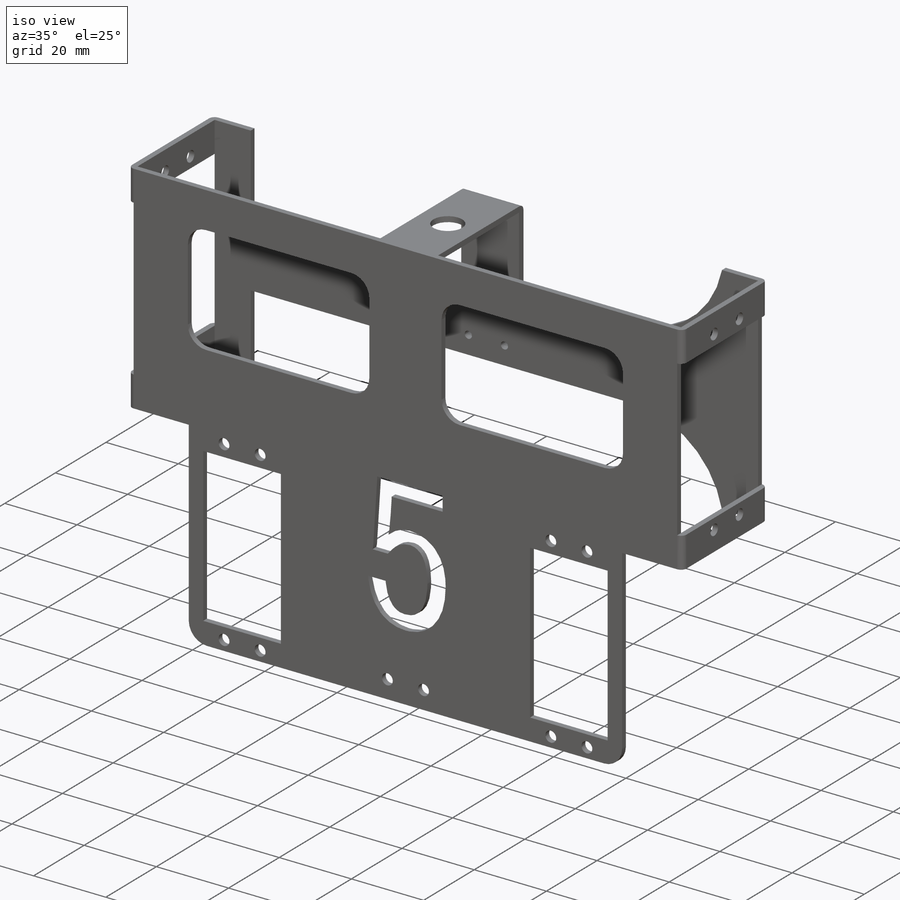
[diagram: iso view]
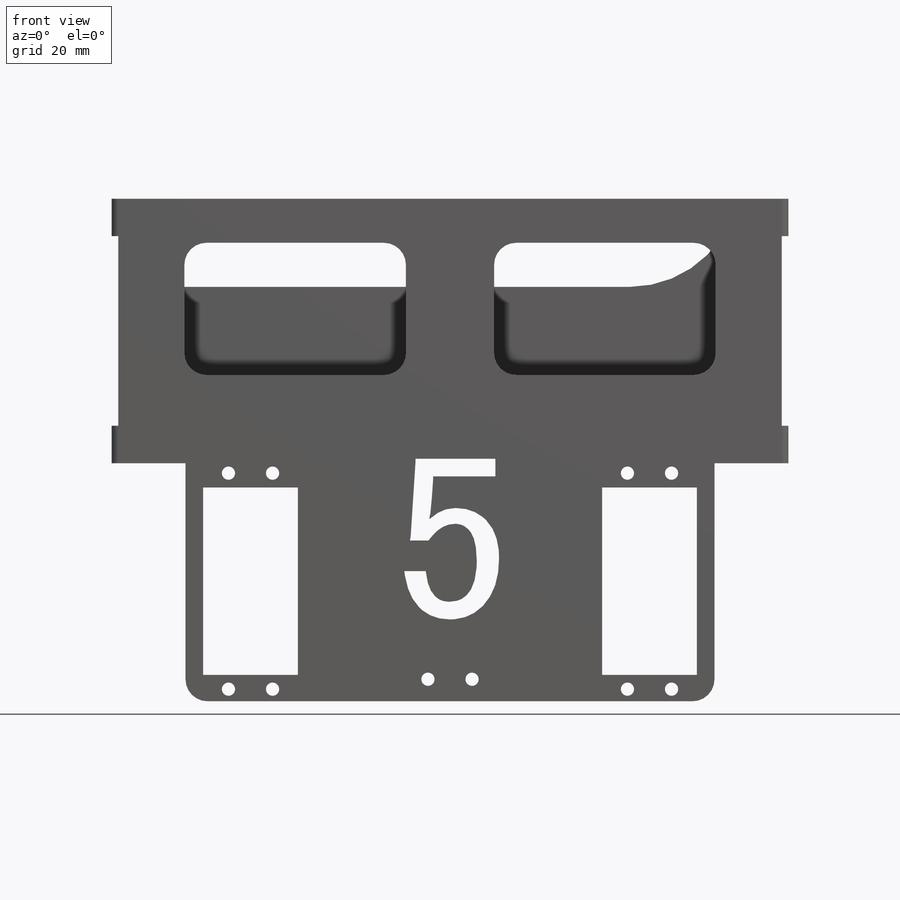
[diagram: front view]
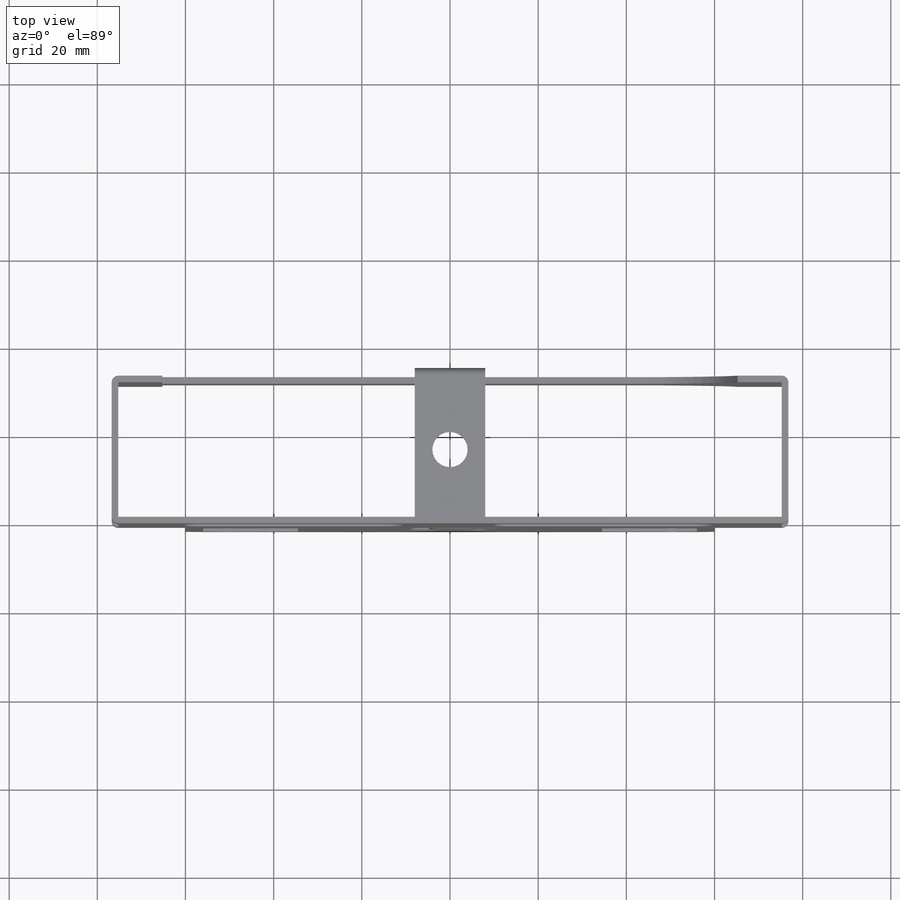
[diagram: top view]
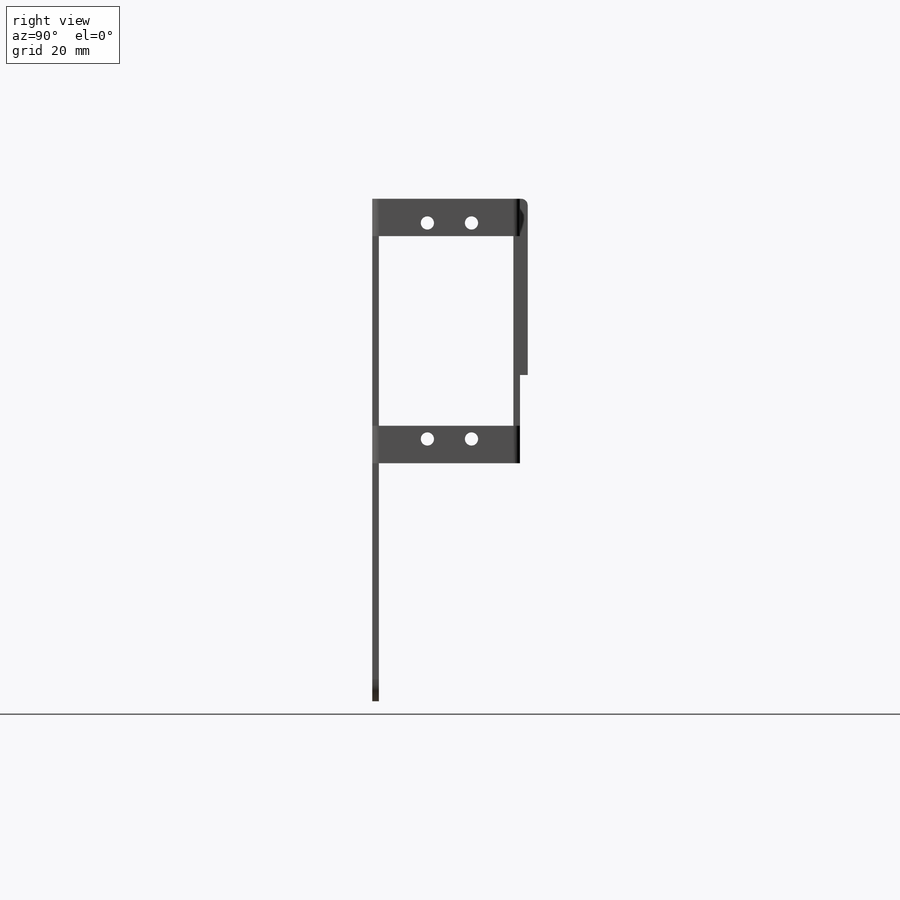
[diagram: right view]
SOLIDWORKS PART (.sldprt)
format: sldprt  version: not decoded by parser v0  size: 723,968 bytes
history: native  units: mm
features: sketch x11, extrude x6, cut_extrude x5, fillet x4, material x1, plane x1, mirror x1 (+13 scaffold rows collapsed)
feature tree (42):
  scaffold x13  (default folders/planes/origin — collapsed)
  material  "Material <not specified>"
  sketch  "Sketch1"  dims[c1.D20=~5.09523mm c1.D21=~6.914954mm c1.D22=2.0mm c1.D23=2.0mm c1.D24=2.0mm c1.D25=3.0mm c1.D26=3.0mm c1.D27=3.0mm c1.D30=3.0mm c1.D32=3.0mm c1.D35=2.0mm c1.D36=2.0mm c1.D37=2.0mm c1.D44=3.0mm c1.D45=3.0mm c1.D46=3.0mm c1.D14=3.0mm c2.D14=3.0mm c3.D14=3.0mm c3.D1=~102.290581mm c3.D2=~303.949154mm c4.D1=120.0mm c4.D2=54.0mm c4.D3=60.0mm c4.D4=~38.937813mm c4.D5=~17.440896mm c5.D4=~38.937813mm c5.D5=~15.818487mm c6.D4=4.0mm c6.D5=4.0mm c6.D6=6.0mm c6.D7=6.0mm c6.D8=21.5mm c6.D9=21.5mm c6.D10=42.5mm c6.D11=~40.26432mm c6.D12=~38.666529mm c7.D11=~40.26432mm c7.D12=~33.873158mm c8.D11=10.0mm c8.D12=10.0mm c8.D13=30.0mm c8.D14=29.5mm c8.D15=29.5mm c8.D16=31.5mm c8.D17=20.0mm c8.D18=75.25mm c8.D19=10.0mm c8.D20=5.0mm c8.D21=5.0mm c8.D24=5.0mm c8.D25=~15.375548mm c8.D27=4.0mm c8.D28=5.0mm c8.D29=5.0mm c8.D30=~19.768311mm c8.D31=4.0mm c8.D32=5.0mm c8.D33=71.5mm c8.D34=8.0mm c8.D37=5.0mm c8.D38=5.0mm c8.D39=10.0mm c9.D38=10.0mm c9.D40=15.0mm c9.D41=10.0mm c9.D42=10.0mm c9.D43=10.0mm c9.D45=10.0mm c9.D46=5.0mm c9.D2=54.0mm c9.D14=46.0mm c9.D16=21.5mm]
  extrude  "Boss-Extrude1"  Depth=1.5mm
  fillet  "Fillet2"  Radius=5mm
  sketch  "Sketch3"
  cut_extrude  "Cut-Extrude1"  Depth=1.5mm
  sketch  "Sketch7"  dims[D1=8.5mm D2=8.5mm D3=1.5mm]
  extrude  "Boss-Extrude4"  Depth=33.5mm
  sketch  "Sketch8"  dims[c1.D1=3.0mm c1.D2=3.0mm c1.D3=3.0mm c1.D4=3.0mm c2.D2=4.0mm c2.D3=10.0mm c2.D4=5.0mm c3.D2=46.0mm]
  cut_extrude  "Cut-Extrude4"  [1 undecoded]
  sketch  "Sketch10"  dims[D1=1.5mm]
  extrude  "Boss-Extrude5"  Depth=10mm
  sketch  "Sketch11"  dims[D1=20.0mm D2=20.0mm]
  extrude  "Boss-Extrude6"  Depth=65.25mm
  sketch  "Sketch12"  dims[c1.D1=2.0mm c1.D2=2.0mm c1.D3=2.0mm c2.D2=5.0mm c2.D3=5.0mm c2.D4=5.0mm]
  cut_extrude  "Cut-Extrude5"  [1 undecoded]
  fillet  "Fillet3"  Radius=1.5mm
  fillet  "Fillet4"  Radius=25mm
  plane  "Plane1"
  mirror  "Mirror3"
  sketch  "Sketch13"  dims[D1=1.5mm D2=16.0mm]
  extrude  "Boss-Extrude7"  Depth=33.75mm
  sketch  "Sketch14"
  extrude  "Boss-Extrude9"  [1 undecoded]
  sketch  "Sketch16"
  cut_extrude  "Cut-Extrude7"  [1 undecoded]
  fillet  "Fillet5"  Radius=1.5mm
  sketch  "Sketch17"  dims[D1=8.0mm D2=8.0mm D3=30.5mm]
  cut_extrude  "Cut-Extrude8"  [1 undecoded]
decode coverage: 18 of 27 modeling features carry decoded parameters
note: ~ marks probable driven/reference dimensions
note: 5 parameter values undecoded
summary: no parameter record found for 5 features
note: suppression state not decoded; provenance and decode notes live in map.json
